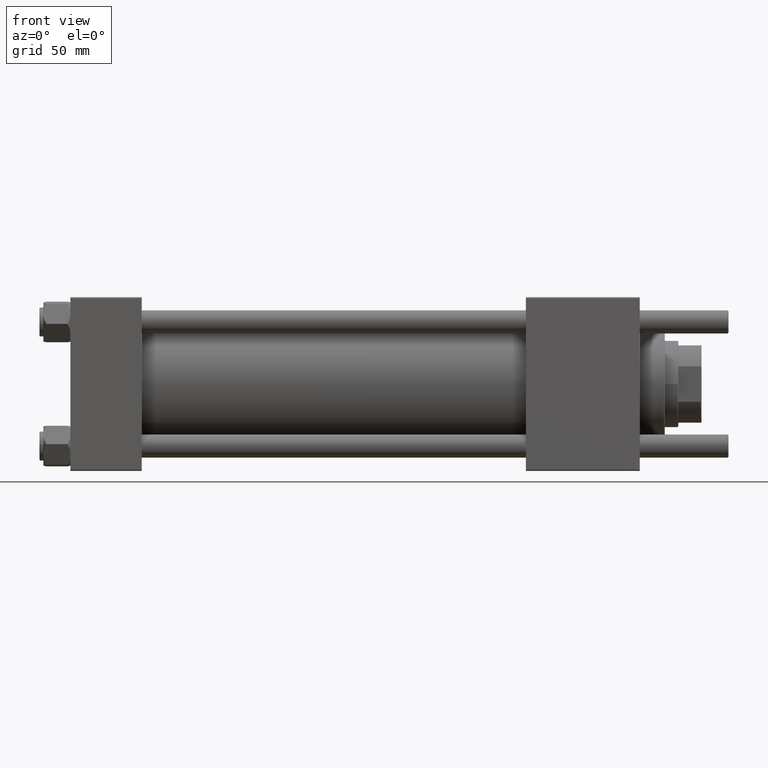
[diagram: clean part render]
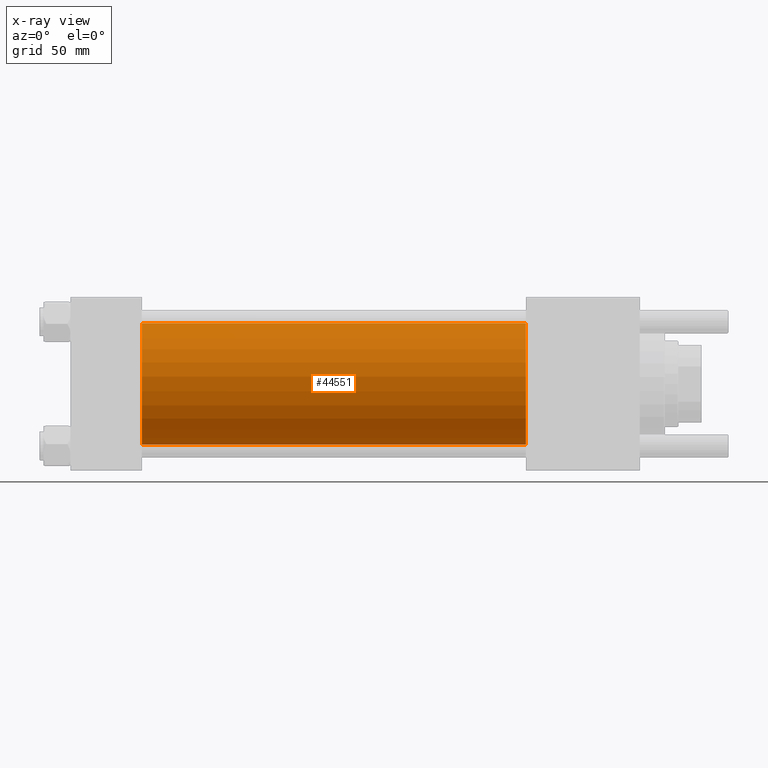
[diagram: x-ray — body ghosted, one internal face saturated and labeled with its STEP entity id]
A machine part, front view, then the same camera in x-ray: the body is ghosted and one INTERNAL B-rep face — a face not visible from any outside direction — is saturated and labeled: STEP entity #44551.
In plain terms, the highlighted cylindrical surface (partial cylindrical patch) has radius 31.5 mm, axis along (-1, -0, -0).
Its self-contained STEP definition (entity closure, byte-faithful):
#108 = VERTEX_POINT ( 'NONE', #28798 ) ;
#465 = AXIS2_PLACEMENT_3D ( 'NONE', #26984, #14081, #49312 ) ;
#1655 = DIRECTION ( 'NONE',  ( -1.000000000000000000, -0.000000000000000000, -0.000000000000000000 ) ) ;
#4711 = AXIS2_PLACEMENT_3D ( 'NONE', #42946, #46982, #43232 ) ;
#6900 = ORIENTED_EDGE ( 'NONE', *, *, #53452, .F. ) ;
#7998 = CYLINDRICAL_SURFACE ( 'NONE', #4711, 31.50000000000000000 ) ;
#8410 = EDGE_CURVE ( 'NONE', #29742, #108, #38192, .T. ) ;
#8758 = ORIENTED_EDGE ( 'NONE', *, *, #28745, .T. ) ;
#9043 = VERTEX_POINT ( 'NONE', #34567 ) ;
#9517 = EDGE_CURVE ( 'NONE', #29742, #54166, #31338, .T. ) ;
#9568 = DIRECTION ( 'NONE',  ( -1.000000000000000000, -0.000000000000000000, -0.000000000000000000 ) ) ;
#12234 = DIRECTION ( 'NONE',  ( 1.000000000000000000, 0.000000000000000000, 0.000000000000000000 ) ) ;
#13517 = VECTOR ( 'NONE', #9568, 1000.000000000000000 ) ;
#14081 = DIRECTION ( 'NONE',  ( 1.000000000000000000, 0.000000000000000000, 0.000000000000000000 ) ) ;
#15781 = VECTOR ( 'NONE', #1655, 1000.000000000000000 ) ;
#18974 = AXIS2_PLACEMENT_3D ( 'NONE', #25700, #12234, #20279 ) ;
#19994 = CARTESIAN_POINT ( 'NONE',  ( 236.0000000000000284, 1.255552203348951850E-15, -31.50000000000000000 ) ) ;
#20279 = DIRECTION ( 'NONE',  ( 0.000000000000000000, 0.000000000000000000, -1.000000000000000000 ) ) ;
#22215 = CARTESIAN_POINT ( 'NONE',  ( 236.0000000000000284, -2.602085213965210642E-15, 31.50000000000000000 ) ) ;
#25700 = CARTESIAN_POINT ( 'NONE',  ( 236.0000000000000284, -2.602085213965210642E-15, 0.000000000000000000 ) ) ;
#26984 = CARTESIAN_POINT ( 'NONE',  ( 37.00000000000000000, -2.602085213965210642E-15, 0.000000000000000000 ) ) ;
#28745 = EDGE_CURVE ( 'NONE', #108, #9043, #50350, .T. ) ;
#28798 = CARTESIAN_POINT ( 'NONE',  ( 236.0000000000000284, 1.255552203348951850E-15, -31.50000000000000000 ) ) ;
#29742 = VERTEX_POINT ( 'NONE', #22215 ) ;
#31338 = LINE ( 'NONE', #48821, #13517 ) ;
#34458 = EDGE_LOOP ( 'NONE', ( #36083, #8758, #6900, #38328 ) ) ;
#34567 = CARTESIAN_POINT ( 'NONE',  ( 37.00000000000000000, 1.255552203348951850E-15, -31.50000000000000000 ) ) ;
#36083 = ORIENTED_EDGE ( 'NONE', *, *, #8410, .T. ) ;
#38192 = CIRCLE ( 'NONE', #18974, 31.50000000000000000 ) ;
#38328 = ORIENTED_EDGE ( 'NONE', *, *, #9517, .F. ) ;
#40709 = CIRCLE ( 'NONE', #465, 31.50000000000000000 ) ;
#42946 = CARTESIAN_POINT ( 'NONE',  ( 236.0000000000000284, -2.602085213965210642E-15, 0.000000000000000000 ) ) ;
#43232 = DIRECTION ( 'NONE',  ( 0.000000000000000000, 0.000000000000000000, 1.000000000000000000 ) ) ;
#44527 = CARTESIAN_POINT ( 'NONE',  ( 37.00000000000000000, -2.602085213965210642E-15, 31.50000000000000000 ) ) ;
#44551 = ADVANCED_FACE ( 'NONE', ( #55853 ), #7998, .F. ) ;
#46982 = DIRECTION ( 'NONE',  ( -1.000000000000000000, -0.000000000000000000, -0.000000000000000000 ) ) ;
#48821 = CARTESIAN_POINT ( 'NONE',  ( 236.0000000000000284, -2.602085213965210642E-15, 31.50000000000000000 ) ) ;
#49312 = DIRECTION ( 'NONE',  ( 0.000000000000000000, 0.000000000000000000, -1.000000000000000000 ) ) ;
#50350 = LINE ( 'NONE', #19994, #15781 ) ;
#53452 = EDGE_CURVE ( 'NONE', #54166, #9043, #40709, .T. ) ;
#54166 = VERTEX_POINT ( 'NONE', #44527 ) ;
#55853 = FACE_OUTER_BOUND ( 'NONE', #34458, .T. ) ;